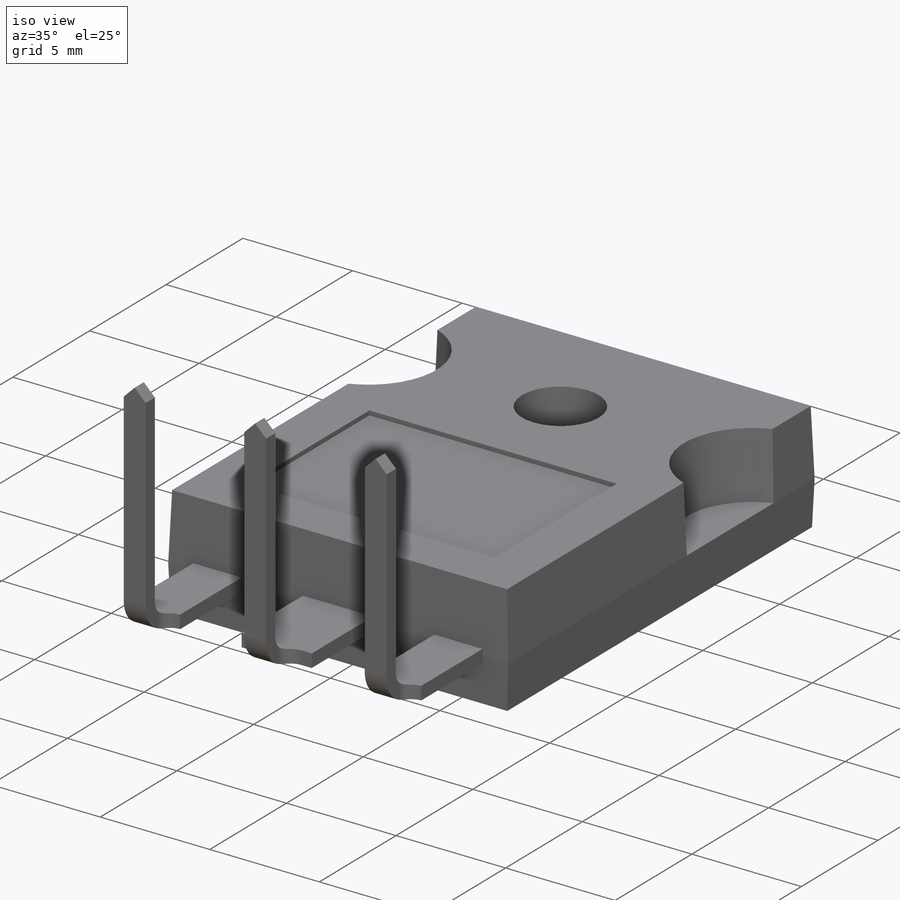
[diagram: iso view]
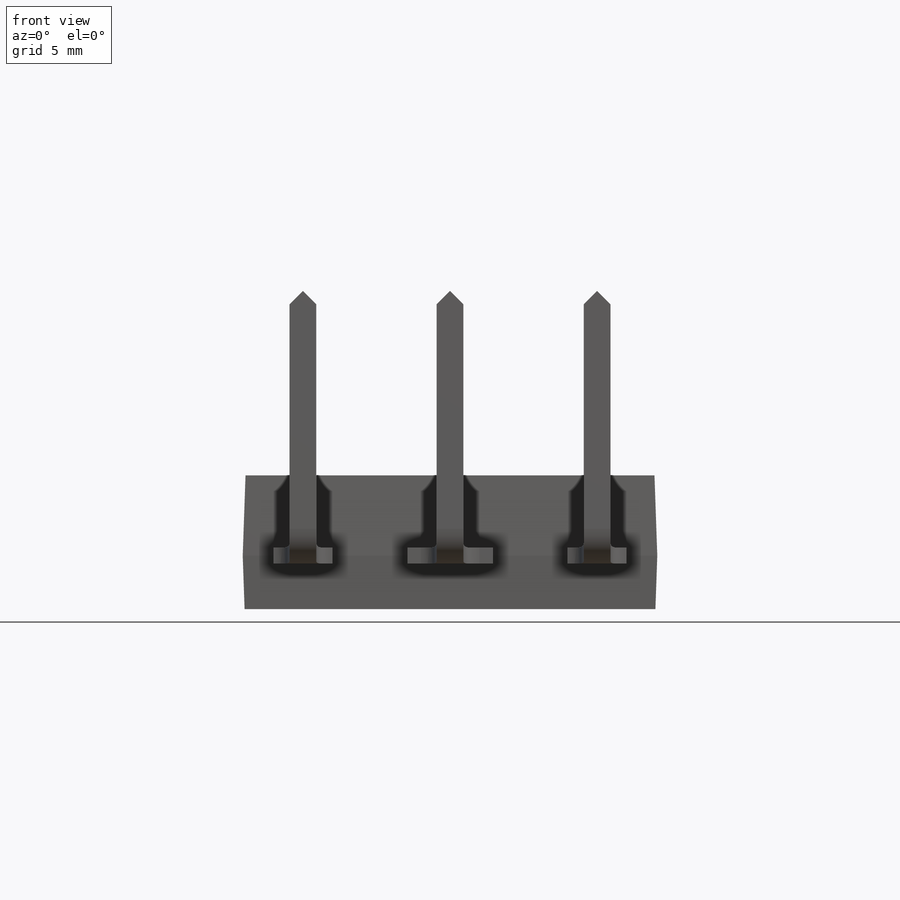
[diagram: front view]
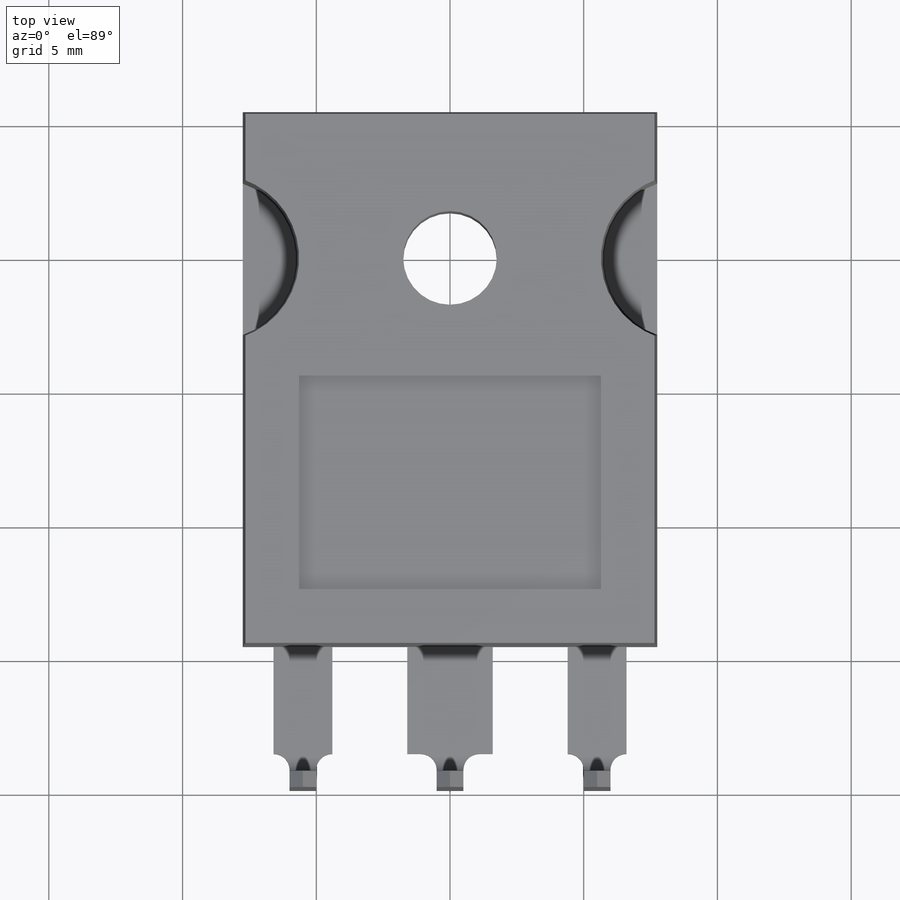
[diagram: top view]
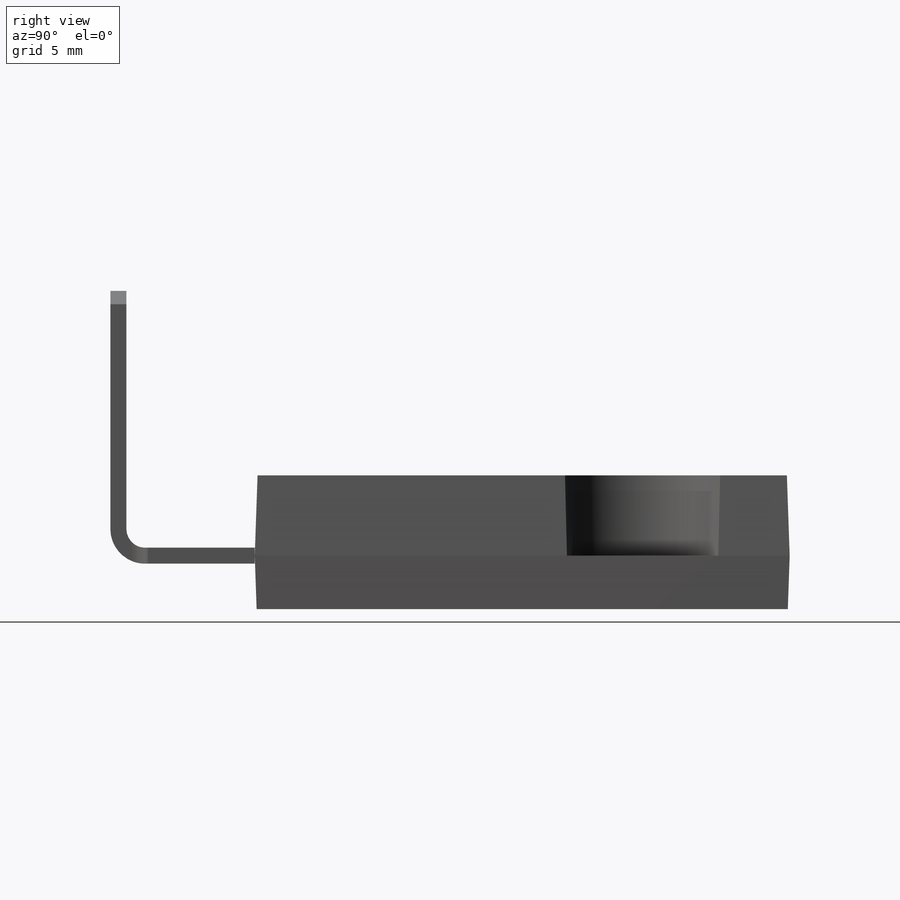
[diagram: right view]
SOLIDWORKS PART (.sldprt)
format: sldprt  version: not decoded by parser v0  size: 316,416 bytes
history: native  units: mm
features: sketch x9, extrude x4, cut_extrude x3, fillet x3, material x1, sweep x1, chamfer x1, pattern_linear x1 (+15 scaffold rows collapsed)
feature tree (38):
  scaffold x15  (default folders/planes/origin — collapsed)
  material  "Material <not specified>"
  sketch  "Sketch1"  dims[D1=3.5mm D2=5.5mm D3=15.5mm D4=20.0mm]
  extrude  "Extrude1"  Depth=2mm
  sketch  "Sketch2"  dims[D2=3.0mm D3=5.0mm D4=1.0mm D1=0.0mm]
  extrude  "Extrude2"  Depth=3mm
  sketch  "Sketch3"
  cut_extrude  "Extrude3"  [1 undecoded]
  sketch  "Sketch4"  dims[c1.D1=4.0mm c1.D2=2.2mm c1.D3=1.0mm c1.D4=2.8mm c1.D5=2.05mm c2.D4=5.65mm c2.D3=5.5mm c3.D4=2.8mm]
  extrude  "Extrude4"  Depth=0.6mm
  sketch  "Sketch5"  dims[D1=2.0mm D2=2.0mm D3=8.0mm]
  cut_extrude  "Extrude5"  Depth=0.2mm
  sketch  "Sketch6"  dims[D1=1.0mm D2=5.5mm D3=5.5mm]
  sketch  "3DSketch1"  dims[D1=1.0mm D2=0.1mm D3=8.9mm]
  sweep  "Sweep1"
  chamfer  "Chamfer1"  Distance=0.5mm Angle=45deg
  pattern_linear  "LPattern1"  Count1=3 Count2=1 Spacing1=5.5mm Spacing2=10mm
  fillet  "Fillet1"  Radius=0.6mm
  fillet  "Fillet2"  Radius=0.6mm
  fillet  "Fillet3"  Radius=0.6mm
  sketch  "Sketch7"  dims[D2=1.0mm D1=0.6mm D3=1.5mm]
  cut_extrude  "Cut-Extrude1"  [1 undecoded]
  sketch  "Sketch8"  dims[D1=0.0mm D2=0.0mm]
  extrude  "Extrude7"  [1 undecoded]
decode coverage: 17 of 22 modeling features carry decoded parameters
note: 3 parameter values undecoded
summary: no parameter record found for 3 features
note: suppression state not decoded; provenance and decode notes live in map.json
